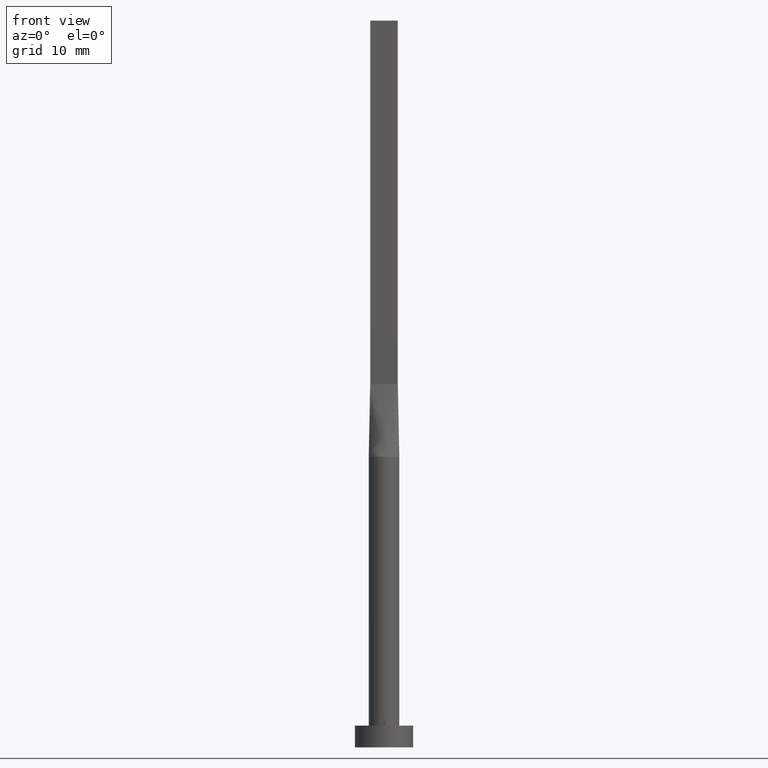
[diagram: clean part render]
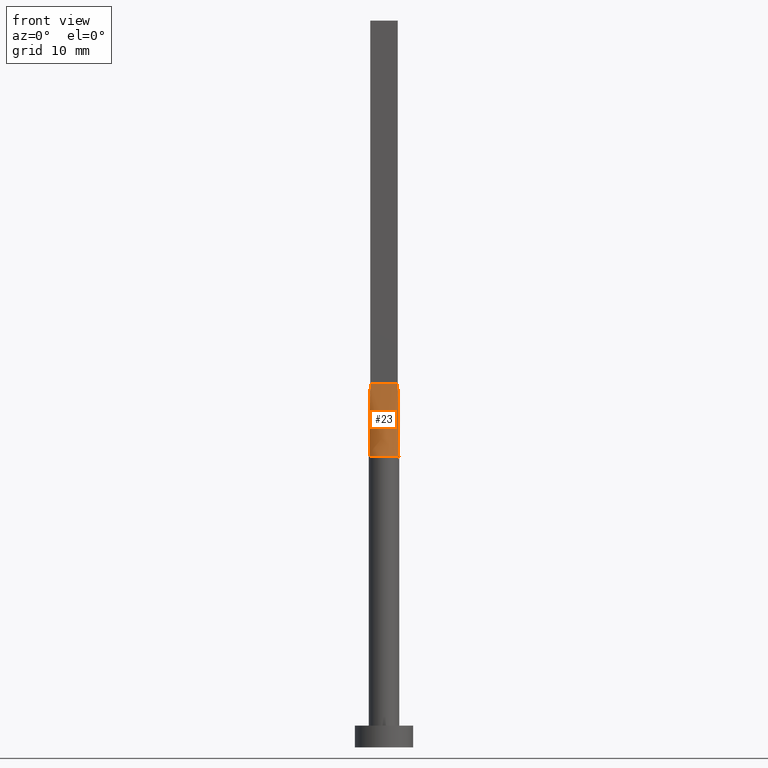
[diagram: same view with one face highlighted and labeled with its STEP entity id]
A machine part, front view. The second image highlights one B-rep face of the part: STEP entity #23.
In plain terms, the highlighted face is a freeform B-spline surface patch.
Its self-contained STEP definition (entity closure, byte-faithful):
#9 = CARTESIAN_POINT ( 'NONE',  ( -1.583604922800831760, -1.399063468093435958, 40.00000000000000711 ) ) ;
#16 = CARTESIAN_POINT ( 'NONE',  ( 1.021961681204344830, -1.852908961101259910, 39.99999999999999289 ) ) ;
#20 = CARTESIAN_POINT ( 'NONE',  ( -1.741666666666667584, -0.4999999999999995559, 50.00000000000000000 ) ) ;
#23 = ADVANCED_FACE ( 'NONE', ( #115 ), #488, .T. ) ;
#26 = VECTOR ( 'NONE', #366, 1000.000000000000000 ) ;
#28 = CARTESIAN_POINT ( 'NONE',  ( 1.899999999999999023, -0.4999999999999997780, 50.00000000000000000 ) ) ;
#51 = CARTESIAN_POINT ( 'NONE',  ( -1.920830191244604412, -0.8725264301372614995, 40.00000000000000711 ) ) ;
#56 = CARTESIAN_POINT ( 'NONE',  ( -2.030856528251558046, -0.5344359284872515214, 40.00000000000000000 ) ) ;
#58 = CARTESIAN_POINT ( 'NONE',  ( -1.899999999999999911, -0.4999999999999995559, 50.00000000000000000 ) ) ;
#61 = VECTOR ( 'NONE', #190, 1000.000000000000114 ) ;
#62 = CARTESIAN_POINT ( 'NONE',  ( 0.1583333333333276638, -0.4999999999999995559, 50.00000000000000000 ) ) ;
#77 = CARTESIAN_POINT ( 'NONE',  ( -1.965428264125778979, -0.5172179642436255387, 45.00000000000000000 ) ) ;
#82 = VERTEX_POINT ( 'NONE', #58 ) ;
#86 = VERTEX_POINT ( 'NONE', #210 ) ;
#107 = CARTESIAN_POINT ( 'NONE',  ( -1.719043754744862484, -1.223020672007444798, 40.00000000000000000 ) ) ;
#114 = VERTEX_POINT ( 'NONE', #292 ) ;
#115 = FACE_OUTER_BOUND ( 'NONE', #497, .T. ) ;
#129 = ORIENTED_EDGE ( 'NONE', *, *, #500, .T. ) ;
#139 = AXIS2_PLACEMENT_3D ( 'NONE', #498, #279, #448 ) ;
#150 = CARTESIAN_POINT ( 'NONE',  ( -1.021961681204347050, -1.852908961101258578, 39.99999999999998579 ) ) ;
#157 = CARTESIAN_POINT ( 'NONE',  ( 0.7916666666666622998, -0.4999999999999996669, 50.00000000000000000 ) ) ;
#178 = CARTESIAN_POINT ( 'NONE',  ( 1.920830191244603302, -0.8725264301372632758, 40.00000000000001421 ) ) ;
#190 = DIRECTION ( 'NONE',  ( -0.01308445504626047293, 0.003443277643752830786, 0.9999084662483913588 ) ) ;
#191 = CARTESIAN_POINT ( 'NONE',  ( -1.108333333333336501, -0.4999999999999995559, 50.00000000000000000 ) ) ;
#198 = CARTESIAN_POINT ( 'NONE',  ( 0.6333333333333286408, -0.4999999999999995559, 50.00000000000000000 ) ) ;
#210 = CARTESIAN_POINT ( 'NONE',  ( -2.031004407172260162, -0.5344754071304557153, 40.00000000000000000 ) ) ;
#237 = CARTESIAN_POINT ( 'NONE',  ( -1.987786580065029840, -0.6981017315960599268, 39.99999999999999289 ) ) ;
#249 = CARTESIAN_POINT ( 'NONE',  ( 0.3166666666666613228, -0.4999999999999995559, 50.00000000000000000 ) ) ;
#270 = CARTESIAN_POINT ( 'NONE',  ( 1.266666666666663277, -0.4999999999999997780, 50.00000000000000000 ) ) ;
#279 = DIRECTION ( 'NONE',  ( 0.000000000000000000, 0.000000000000000000, 1.000000000000000000 ) ) ;
#287 = EDGE_CURVE ( 'NONE', #82, #477, #490, .T. ) ;
#288 = CARTESIAN_POINT ( 'NONE',  ( -0.6333333333333375226, -0.4999999999999995559, 50.00000000000000000 ) ) ;
#290 = CARTESIAN_POINT ( 'NONE',  ( -0.1583333333333388215, -0.4999999999999995559, 50.00000000000000711 ) ) ;
#292 = CARTESIAN_POINT ( 'NONE',  ( 2.031027953490633031, -0.5344816358097418396, 40.00000000000000000 ) ) ;
#301 = EDGE_CURVE ( 'NONE', #86, #114, #409, .T. ) ;
#302 = CARTESIAN_POINT ( 'NONE',  ( -1.899999999999999911, -0.4999999999999995559, 50.00000000000000000 ) ) ;
#306 = ORIENTED_EDGE ( 'NONE', *, *, #287, .F. ) ;
#312 = CARTESIAN_POINT ( 'NONE',  ( 1.719043754744861374, -1.223020672007445908, 40.00000000000001421 ) ) ;
#330 = CARTESIAN_POINT ( 'NONE',  ( -0.2698109971861053502, -2.100000000000000089, 40.00000000000001421 ) ) ;
#344 = DIRECTION ( 'NONE',  ( -0.01308445504626047293, -0.003443277643752733208, -0.9999084662483913588 ) ) ;
#354 = CARTESIAN_POINT ( 'NONE',  ( 1.108333333333329618, -0.4999999999999997780, 50.00000000000000000 ) ) ;
#364 = ORIENTED_EDGE ( 'NONE', *, *, #422, .T. ) ;
#366 = DIRECTION ( 'NONE',  ( 1.000000000000000000, -5.706327223607918787E-17, 0.000000000000000000 ) ) ;
#370 = CARTESIAN_POINT ( 'NONE',  ( -1.583333333333335036, -0.4999999999999995559, 50.00000000000000000 ) ) ;
#373 = CARTESIAN_POINT ( 'NONE',  ( 1.235326090059013504, -1.714395692508636548, 39.99999999999999289 ) ) ;
#382 = LINE ( 'NONE', #77, #392 ) ;
#387 = CARTESIAN_POINT ( 'NONE',  ( 1.583604922800829984, -1.399063468093436846, 40.00000000000000000 ) ) ;
#391 = CARTESIAN_POINT ( 'NONE',  ( 1.987786580065029396, -0.6981017315960611480, 40.00000000000000711 ) ) ;
#392 = VECTOR ( 'NONE', #344, 1000.000000000000114 ) ;
#406 = CARTESIAN_POINT ( 'NONE',  ( -1.266666666666669494, -0.4999999999999995559, 50.00000000000000000 ) ) ;
#409 = CIRCLE ( 'NONE', #139, 2.100000000000000089 ) ;
#422 = EDGE_CURVE ( 'NONE', #114, #477, #538, .T. ) ;
#435 = CARTESIAN_POINT ( 'NONE',  ( 1.583333333333331039, -0.4999999999999997780, 50.00000000000000000 ) ) ;
#448 = DIRECTION ( 'NONE',  ( 1.000000000000000000, 0.000000000000000000, 0.000000000000000000 ) ) ;
#449 = CARTESIAN_POINT ( 'NONE',  ( 1.965428264125778091, -0.5172179642436263158, 45.00000000000000000 ) ) ;
#453 = CARTESIAN_POINT ( 'NONE',  ( -0.5389299406762309008, -2.046272663899432409, 40.00000000000000711 ) ) ;
#457 = CARTESIAN_POINT ( 'NONE',  ( 0.2698109971861026857, -2.100000000000000977, 40.00000000000001421 ) ) ;
#477 = VERTEX_POINT ( 'NONE', #28 ) ;
#483 = CARTESIAN_POINT ( 'NONE',  ( 2.030856528251557158, -0.5344359284872526317, 40.00000000000000000 ) ) ;
#488 = B_SPLINE_SURFACE_WITH_KNOTS ( 'NONE', 3, 1, ( 
 ( #56, #302 ),
 ( #237, #20 ),
 ( #51, #370 ),
 ( #107, #406 ),
 ( #9, #191 ),
 ( #555, #545 ),
 ( #150, #288 ),
 ( #453, #549 ),
 ( #330, #290 ),
 ( #457, #62 ),
 ( #558, #249 ),
 ( #16, #198 ),
 ( #373, #157 ),
 ( #387, #354 ),
 ( #312, #270 ),
 ( #178, #435 ),
 ( #391, #581 ),
 ( #483, #532 ) ),
 .UNSPECIFIED., .F., .F., .F.,
 ( 4, 2, 2, 2, 2, 2, 2, 2, 4 ),
 ( 2, 2 ),
 ( 0.000000000000000000, 0.1250000000000000555, 0.2500000000000001665, 0.3750000000000002776, 0.5000000000000003331, 0.6250000000000002220, 0.7500000000000002220, 0.8750000000000001110, 1.000000000000000000 ),
 ( 0.000000000000000000, 1.000000000000000000 ),
 .UNSPECIFIED. ) ;
#490 = LINE ( 'NONE', #502, #26 ) ;
#497 = EDGE_LOOP ( 'NONE', ( #577, #364, #306, #129 ) ) ;
#498 = CARTESIAN_POINT ( 'NONE',  ( 0.000000000000000000, 0.000000000000000000, 40.00000000000000000 ) ) ;
#500 = EDGE_CURVE ( 'NONE', #82, #86, #382, .T. ) ;
#502 = CARTESIAN_POINT ( 'NONE',  ( -1.899999999999999911, -0.4999999999999995559, 50.00000000000000000 ) ) ;
#532 = CARTESIAN_POINT ( 'NONE',  ( 1.899999999999999023, -0.4999999999999997780, 50.00000000000000000 ) ) ;
#538 = LINE ( 'NONE', #449, #61 ) ;
#545 = CARTESIAN_POINT ( 'NONE',  ( -0.7916666666666705154, -0.4999999999999995559, 50.00000000000000000 ) ) ;
#549 = CARTESIAN_POINT ( 'NONE',  ( -0.3166666666666716479, -0.4999999999999995559, 50.00000000000000000 ) ) ;
#555 = CARTESIAN_POINT ( 'NONE',  ( -1.235326090059015725, -1.714395692508636104, 39.99999999999999289 ) ) ;
#558 = CARTESIAN_POINT ( 'NONE',  ( 0.5389299406762287914, -2.046272663899431965, 40.00000000000000000 ) ) ;
#577 = ORIENTED_EDGE ( 'NONE', *, *, #301, .T. ) ;
#581 = CARTESIAN_POINT ( 'NONE',  ( 1.741666666666664920, -0.4999999999999997780, 50.00000000000000000 ) ) ;